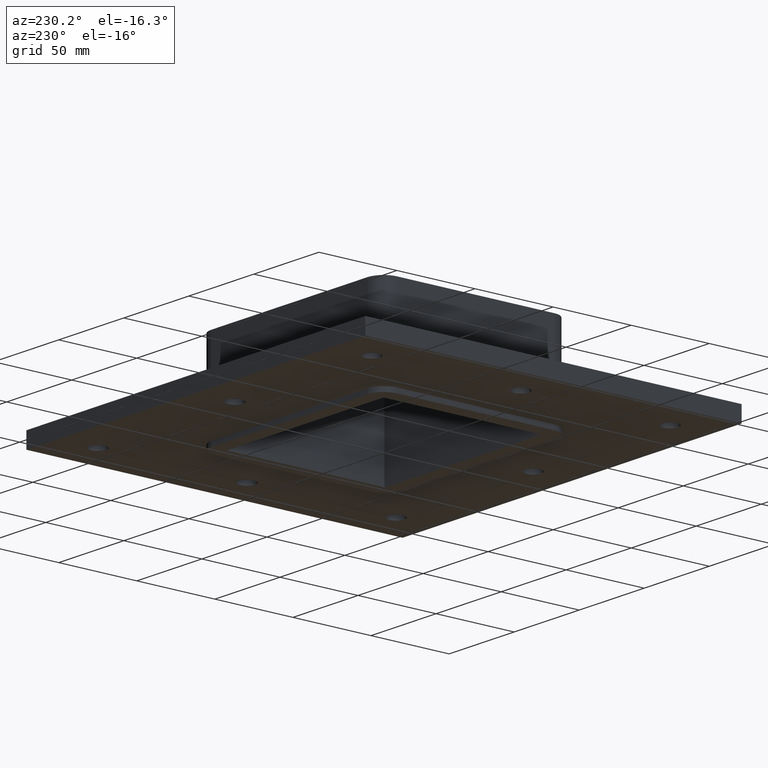
[diagram: clean part render]
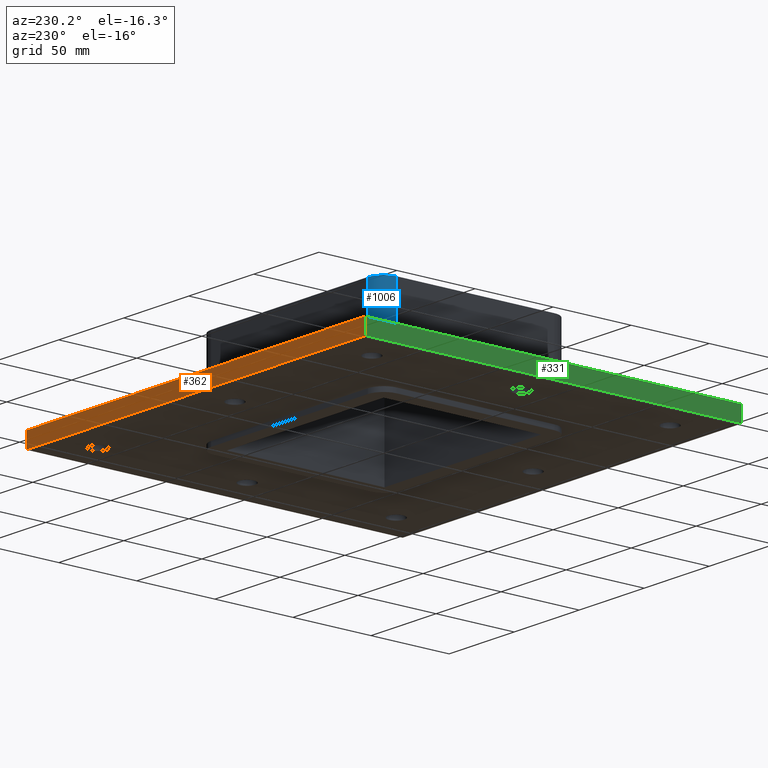
[diagram: same view with three faces highlighted in distinct colors, each labeled with its STEP entity id]
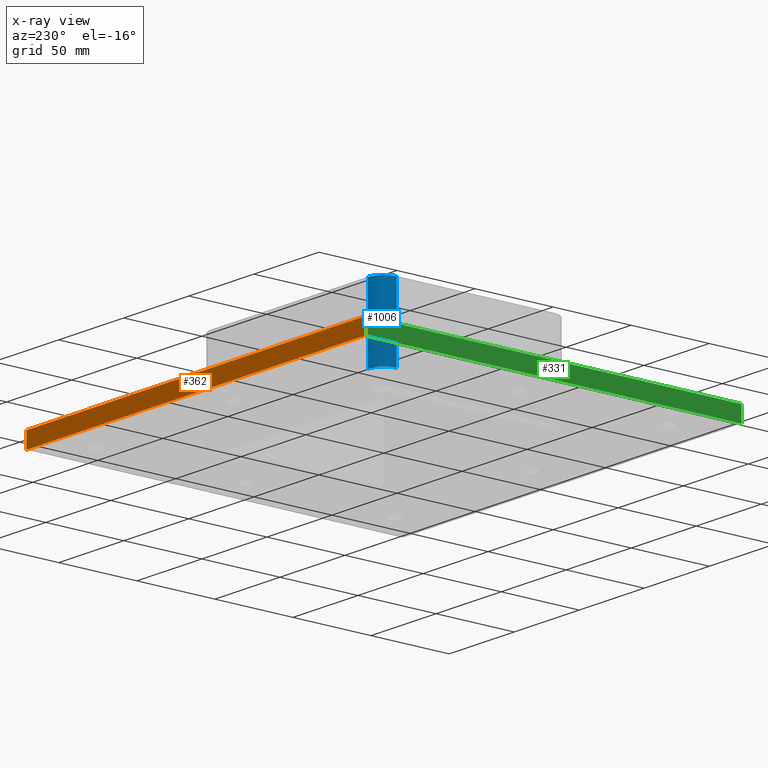
[diagram: x-ray of the same camera — body ghosted, the three highlighted faces saturated]
A machine part, auxiliary view with three faces highlighted in distinct colors.
The next image is the same camera in x-ray (body ghosted, the three faces saturated) — at least one of them is partly hidden behind the body in this view.
Their STEP definitions:

[orange] entity #362 — the highlighted planar face has unit normal (0, 1, 0).
#299=CARTESIAN_POINT('',(-130.25000000000003,120.49999999999997,-27.0));
#300=VERTEX_POINT('',#299);
#315=CARTESIAN_POINT('',(-130.25000000000003,120.49999999999997,-17.0));
#316=VERTEX_POINT('',#315);
#323=CARTESIAN_POINT('',(-130.25000000000003,120.49999999999997,-27.0));
#324=DIRECTION('',(0.0,0.0,1.0));
#325=VECTOR('',#324,10.0);
#326=LINE('',#323,#325);
#327=EDGE_CURVE('',#300,#316,#326,.T.);
#332=CARTESIAN_POINT('',(130.25,120.5,-27.0));
#333=DIRECTION('',(0.0,1.0,0.0));
#334=DIRECTION('',(-1.0,0.0,0.0));
#335=AXIS2_PLACEMENT_3D('',#332,#333,#334);
#336=PLANE('',#335);
#337=CARTESIAN_POINT('',(130.25,120.5,-27.0));
#338=VERTEX_POINT('',#337);
#339=CARTESIAN_POINT('',(-130.25000000000003,120.49999999999997,-27.0));
#340=DIRECTION('',(1.0,0.0,0.0));
#341=VECTOR('',#340,260.5);
#342=LINE('',#339,#341);
#343=EDGE_CURVE('',#300,#338,#342,.T.);
#344=ORIENTED_EDGE('',*,*,#343,.F.);
#345=ORIENTED_EDGE('',*,*,#327,.T.);
#346=CARTESIAN_POINT('',(130.25,120.5,-17.0));
#347=VERTEX_POINT('',#346);
#348=CARTESIAN_POINT('',(130.24999999999997,120.5,-17.0));
#349=DIRECTION('',(-1.0,0.0,0.0));
#350=VECTOR('',#349,260.5);
#351=LINE('',#348,#350);
#352=EDGE_CURVE('',#347,#316,#351,.T.);
#353=ORIENTED_EDGE('',*,*,#352,.F.);
#354=CARTESIAN_POINT('',(130.25,120.5,-27.0));
#355=DIRECTION('',(0.0,0.0,1.0));
#356=VECTOR('',#355,10.0);
#357=LINE('',#354,#356);
#358=EDGE_CURVE('',#338,#347,#357,.T.);
#359=ORIENTED_EDGE('',*,*,#358,.F.);
#360=EDGE_LOOP('',(#344,#345,#353,#359));
#361=FACE_OUTER_BOUND('',#360,.T.);
#362=ADVANCED_FACE('',(#361),#336,.T.);

[blue] entity #1006 — the highlighted cylindrical surface (edge-blend (fillet) strip) has radius 10 mm, axis along (0, 0, 1).
#496=CARTESIAN_POINT('',(-70.25,50.500000000000007,-17.0));
#497=VERTEX_POINT('',#496);
#504=CARTESIAN_POINT('',(-60.250000000000021,60.499999999999972,-17.0));
#505=VERTEX_POINT('',#504);
#506=CARTESIAN_POINT('',(-60.250000000000028,50.500000000000043,-17.0));
#507=DIRECTION('',(0.0,0.0,1.0));
#508=DIRECTION('',(-0.707106781186547,0.707106781186547,0.0));
#509=AXIS2_PLACEMENT_3D('',#506,#507,#508);
#510=CIRCLE('',#509,9.999999999999998);
#511=EDGE_CURVE('',#505,#497,#510,.T.);
#820=CARTESIAN_POINT('',(-60.250000000000028,60.500000000000043,30.0));
#821=VERTEX_POINT('',#820);
#822=CARTESIAN_POINT('',(-60.250000000000028,60.500000000000043,30.0));
#823=DIRECTION('',(0.0,0.0,-1.0));
#824=VECTOR('',#823,47.0);
#825=LINE('',#822,#824);
#826=EDGE_CURVE('',#821,#505,#825,.T.);
#982=CARTESIAN_POINT('',(-60.250000000000028,50.500000000000043,0.0));
#983=DIRECTION('',(0.0,0.0,1.0));
#984=DIRECTION('',(-0.707106781186547,0.707106781186547,0.0));
#985=AXIS2_PLACEMENT_3D('',#982,#983,#984);
#986=CYLINDRICAL_SURFACE('',#985,10.0);
#987=ORIENTED_EDGE('',*,*,#511,.T.);
#988=CARTESIAN_POINT('',(-70.250000000000028,50.500000000000043,30.0));
#989=VERTEX_POINT('',#988);
#990=CARTESIAN_POINT('',(-70.250000000000028,50.500000000000043,-17.0));
#991=DIRECTION('',(0.0,0.0,1.0));
#992=VECTOR('',#991,47.0);
#993=LINE('',#990,#992);
#994=EDGE_CURVE('',#497,#989,#993,.T.);
#995=ORIENTED_EDGE('',*,*,#994,.T.);
#996=CARTESIAN_POINT('',(-60.250000000000028,50.500000000000043,30.0));
#997=DIRECTION('',(0.0,0.0,-1.0));
#998=DIRECTION('',(-0.707106781186547,0.707106781186547,0.0));
#999=AXIS2_PLACEMENT_3D('',#996,#997,#998);
#1000=CIRCLE('',#999,9.999999999999998);
#1001=EDGE_CURVE('',#989,#821,#1000,.T.);
#1002=ORIENTED_EDGE('',*,*,#1001,.T.);
#1003=ORIENTED_EDGE('',*,*,#826,.T.);
#1004=EDGE_LOOP('',(#987,#995,#1002,#1003));
#1005=FACE_OUTER_BOUND('',#1004,.T.);
#1006=ADVANCED_FACE('',(#1005),#986,.T.);

[green] entity #331 — the highlighted planar face has unit normal (-1, 0, 0).
#292=CARTESIAN_POINT('',(-130.25000000000003,120.49999999999997,-27.0));
#293=DIRECTION('',(-1.0,0.0,0.0));
#294=DIRECTION('',(0.0,-1.0,0.0));
#295=AXIS2_PLACEMENT_3D('',#292,#293,#294);
#296=PLANE('',#295);
#297=CARTESIAN_POINT('',(-130.25,-120.50000000000004,-27.0));
#298=VERTEX_POINT('',#297);
#299=CARTESIAN_POINT('',(-130.25000000000003,120.49999999999997,-27.0));
#300=VERTEX_POINT('',#299);
#301=CARTESIAN_POINT('',(-130.25,-120.50000000000004,-27.0));
#302=DIRECTION('',(0.0,1.0,0.0));
#303=VECTOR('',#302,241.0);
#304=LINE('',#301,#303);
#305=EDGE_CURVE('',#298,#300,#304,.T.);
#306=ORIENTED_EDGE('',*,*,#305,.F.);
#307=CARTESIAN_POINT('',(-130.25,-120.50000000000004,-17.0));
#308=VERTEX_POINT('',#307);
#309=CARTESIAN_POINT('',(-130.25,-120.50000000000004,-27.0));
#310=DIRECTION('',(0.0,0.0,1.0));
#311=VECTOR('',#310,10.0);
#312=LINE('',#309,#311);
#313=EDGE_CURVE('',#298,#308,#312,.T.);
#314=ORIENTED_EDGE('',*,*,#313,.T.);
#315=CARTESIAN_POINT('',(-130.25000000000003,120.49999999999997,-17.0));
#316=VERTEX_POINT('',#315);
#317=CARTESIAN_POINT('',(-130.25000000000003,120.49999999999996,-17.0));
#318=DIRECTION('',(0.0,-1.0,0.0));
#319=VECTOR('',#318,241.0);
#320=LINE('',#317,#319);
#321=EDGE_CURVE('',#316,#308,#320,.T.);
#322=ORIENTED_EDGE('',*,*,#321,.F.);
#323=CARTESIAN_POINT('',(-130.25000000000003,120.49999999999997,-27.0));
#324=DIRECTION('',(0.0,0.0,1.0));
#325=VECTOR('',#324,10.0);
#326=LINE('',#323,#325);
#327=EDGE_CURVE('',#300,#316,#326,.T.);
#328=ORIENTED_EDGE('',*,*,#327,.F.);
#329=EDGE_LOOP('',(#306,#314,#322,#328));
#330=FACE_OUTER_BOUND('',#329,.T.);
#331=ADVANCED_FACE('',(#330),#296,.T.);